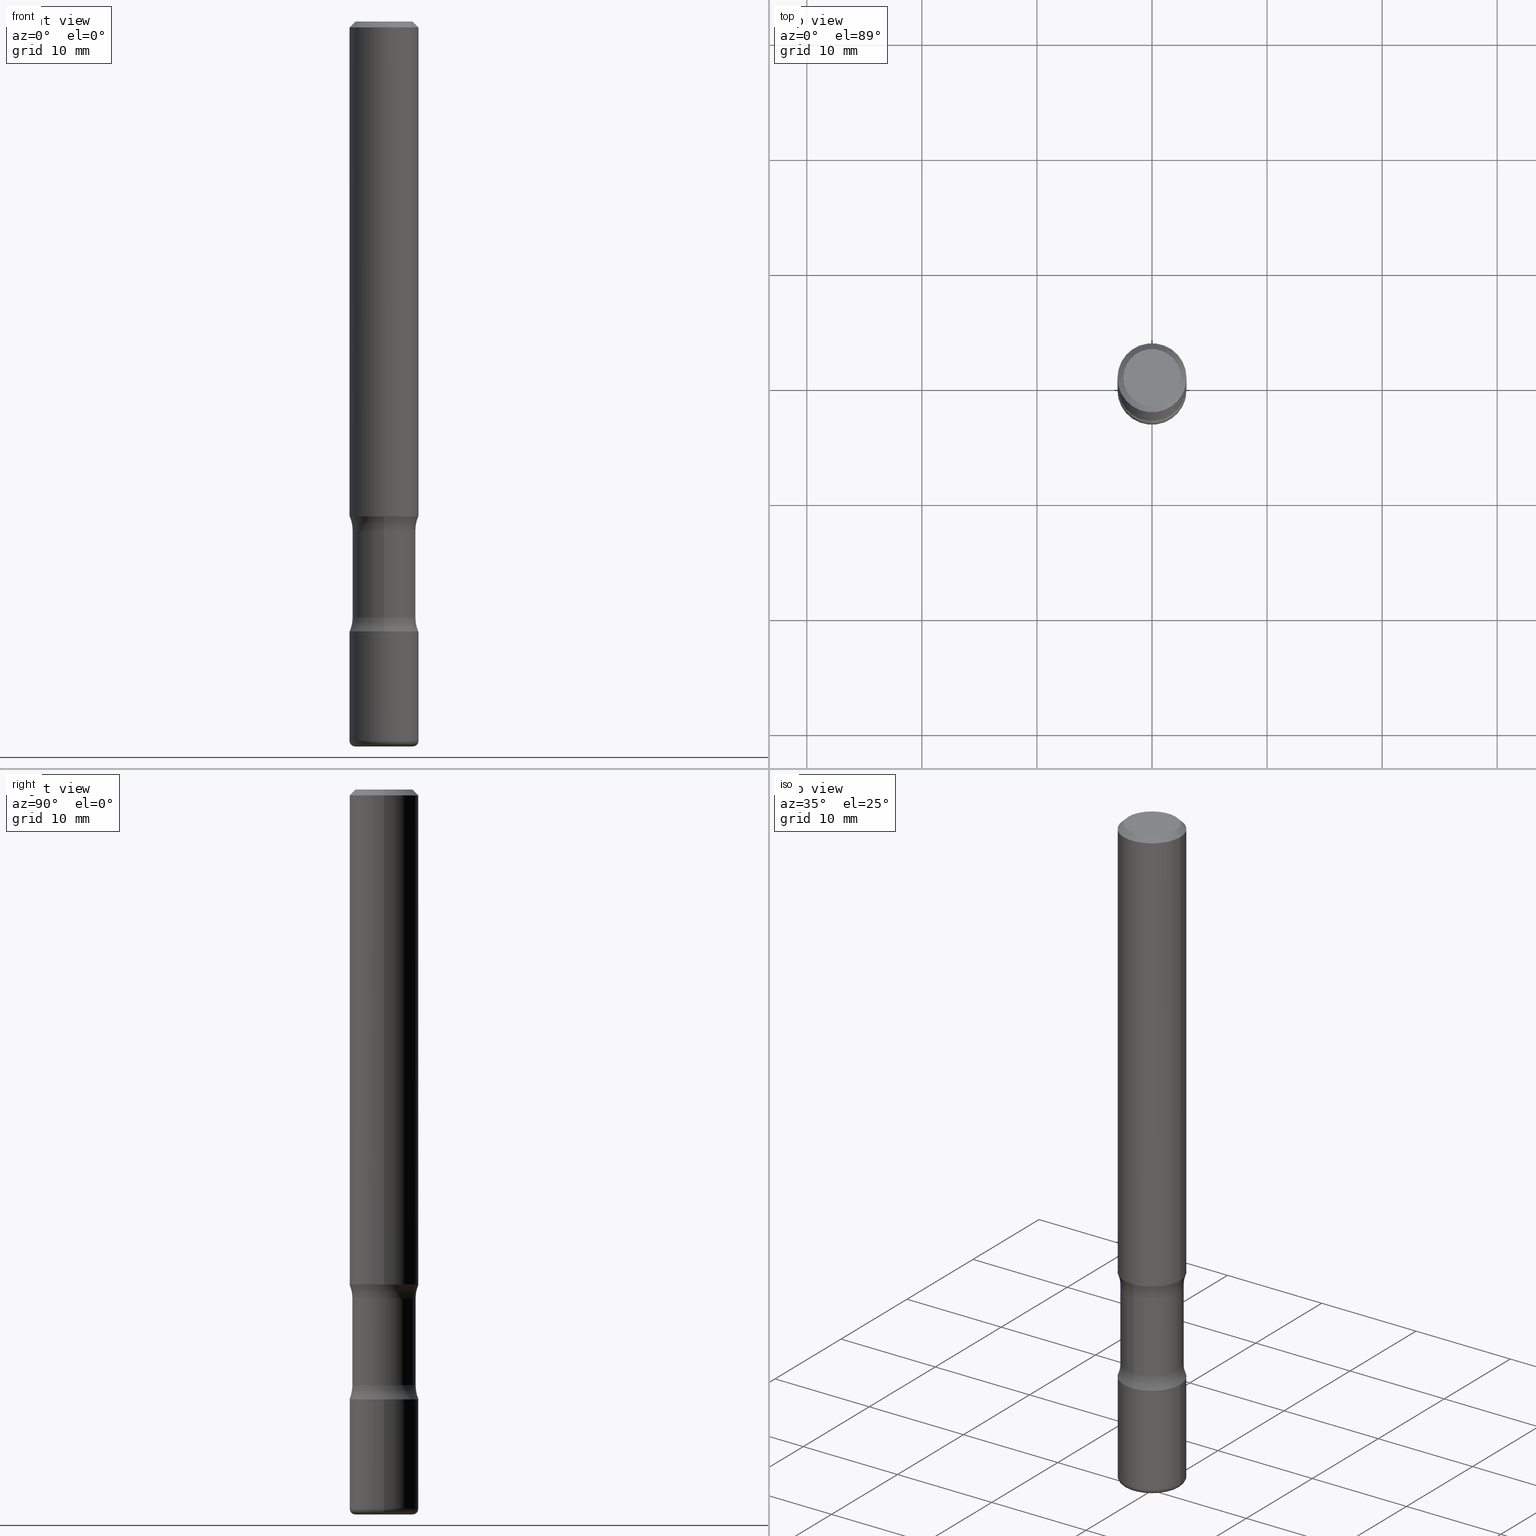
[diagram: canonical four-view strip — front | top / right | iso, engineering-drawing reading convention]
A machine part, canonical four-view strip (front | top / right | iso — engineering-drawing reading convention). The complete STEP part file that produces these views, byte-faithful:
ISO-10303-21;
HEADER;
FILE_DESCRIPTION (( 'STEP AP203' ),
    '1' );
FILE_NAME ('44789.STEP',
    '2024-03-02T03:19:21',
    ( '' ),
    ( '' ),
    'SwSTEP 2.0',
    'SolidWorks 2023',
    '' );
FILE_SCHEMA (( 'CONFIG_CONTROL_DESIGN' ));
ENDSEC;

DATA;
#1 = CARTESIAN_POINT ( 'NONE',  ( -7.412768086591543542E-16, -0.1080500000000088057, -2.480299999999999727 ) ) ;
#2 = AXIS2_PLACEMENT_3D ( 'NONE', #320, #83, #263 ) ;
#3 = APPLICATION_CONTEXT ( 'configuration controlled 3d designs of mechanical parts and assemblies' ) ;
#4 = PLANE ( 'NONE',  #230 ) ;
#5 = EDGE_CURVE ( 'NONE', #157, #156, #130, .T. ) ;
#6 = DIRECTION ( 'NONE',  ( -2.445468806185136597E-29, 3.491481338843145583E-15, 1.000000000000000000 ) ) ;
#7 = APPROVAL_PERSON_ORGANIZATION ( #195, #518, #500 ) ;
#8 = AXIS2_PLACEMENT_3D ( 'NONE', #545, #169, #369 ) ;
#9 = EDGE_LOOP ( 'NONE', ( #124, #232, #28, #239 ) ) ;
#10 = DIRECTION ( 'NONE',  ( 1.739927459713082666E-29, -4.501856703910724248E-15, -1.000000000000000000 ) ) ;
#11 = EDGE_LOOP ( 'NONE', ( #282, #290, #388, #314 ) ) ;
#12 = ADVANCED_FACE ( 'NONE', ( #433 ), #527, .T. ) ;
#13 = ORIENTED_EDGE ( 'NONE', *, *, #375, .T. ) ;
#14 = ORIENTED_EDGE ( 'NONE', *, *, #319, .T. ) ;
#15 = APPLICATION_PROTOCOL_DEFINITION ( 'international standard', 'config_control_design', 1994, #400 ) ;
#16 = PERSON_AND_ORGANIZATION_ROLE ( 'design_supplier' ) ;
#17 = CIRCLE ( 'NONE', #439, 0.1181000000000004407 ) ;
#18 = ORIENTED_EDGE ( 'NONE', *, *, #505, .F. ) ;
#19 = PERSON_AND_ORGANIZATION_ROLE ( 'classification_officer' ) ;
#20 = LINE ( 'NONE', #342, #466 ) ;
#21 = CARTESIAN_POINT ( 'NONE',  ( -0.1181000000000003713, 8.391509709326809581E-16, -5.809262341591062001E-30 ) ) ;
#22 = CARTESIAN_POINT ( 'NONE',  ( -0.09840000000000045932, -7.856367562084738439E-15, -2.480300000000000171 ) ) ;
#23 = EDGE_CURVE ( 'NONE', #246, #204, #421, .T. ) ;
#24 = DATE_AND_TIME ( #418, #371 ) ;
#25 = VERTEX_POINT ( 'NONE', #133 ) ;
#26 = CARTESIAN_POINT ( 'NONE',  ( -7.757508110979694300E-16, -0.1080500000000053085, -1.742007000519274706 ) ) ;
#27 = LINE ( 'NONE', #21, #148 ) ;
#28 = ORIENTED_EDGE ( 'NONE', *, *, #489, .F. ) ;
#29 = DIRECTION ( 'NONE',  ( 2.438088387897960049E-29, -3.491481338843145188E-15, -1.000000000000000000 ) ) ;
#30 = EDGE_CURVE ( 'NONE', #107, #532, #231, .T. ) ;
#31 = CARTESIAN_POINT ( 'NONE',  ( -8.102248135367737575E-16, -0.1181000000000055200, -1.692899999999999405 ) ) ;
#32 = CARTESIAN_POINT ( 'NONE',  ( 0.1181000000000005101, -9.415826874592195569E-15, -2.460600000000000342 ) ) ;
#33 = CARTESIAN_POINT ( 'NONE',  ( -1.638148592442117198E-29, -1.693862559428012074E-14, -2.086600000000001121 ) ) ;
#34 = FACE_OUTER_BOUND ( 'NONE', #544, .T. ) ;
#35 = AXIS2_PLACEMENT_3D ( 'NONE', #98, #101, #453 ) ;
#36 = DIRECTION ( 'NONE',  ( 1.739927459713082666E-29, -4.501856703910724248E-15, -1.000000000000000000 ) ) ;
#37 = ORIENTED_EDGE ( 'NONE', *, *, #104, .T. ) ;
#38 = CLOSED_SHELL ( 'NONE', ( #12, #219, #304, #512, #409, #289, #283, #315 ) ) ;
#39 = CYLINDRICAL_SURFACE ( 'NONE', #480, 0.1181000000000005240 ) ;
#40 = TOROIDAL_SURFACE ( 'NONE', #267, 0.2330499999999996463, 0.1250000000000000555 ) ;
#41 = DIRECTION ( 'NONE',  ( 2.438088387897960049E-29, -3.491481338843145188E-15, -1.000000000000000000 ) ) ;
#42 = EDGE_LOOP ( 'NONE', ( #244, #162, #341, #297 ) ) ;
#43 = ORIENTED_EDGE ( 'NONE', *, *, #63, .F. ) ;
#44 = DIRECTION ( 'NONE',  ( -1.000000000000000000, 6.982962677686265922E-15, -4.876176775795935793E-29 ) ) ;
#45 = CARTESIAN_POINT ( 'NONE',  ( 5.006471063776791088E-29, -7.079720685789698348E-15, -2.037492999480726041 ) ) ;
#46 = ADVANCED_FACE ( 'NONE', ( #522 ), #318, .F. ) ;
#47 = EDGE_LOOP ( 'NONE', ( #274, #64 ) ) ;
#48 = CC_DESIGN_PERSON_AND_ORGANIZATION_ASSIGNMENT ( #139, #499, ( #335 ) ) ;
#49 = CARTESIAN_POINT ( 'NONE',  ( 5.006471063776791088E-29, -7.079720685789698348E-15, -2.037492999480726041 ) ) ;
#50 = AXIS2_PLACEMENT_3D ( 'NONE', #379, #331, #420 ) ;
#51 = CIRCLE ( 'NONE', #35, 0.1181000000000004407 ) ;
#52 =( NAMED_UNIT ( * ) SI_UNIT ( $, .STERADIAN. ) SOLID_ANGLE_UNIT ( ) );
#53 = CARTESIAN_POINT ( 'NONE',  ( 5.787724651874947150E-29, -9.057705945959761462E-15, -2.480300000000000171 ) ) ;
#54 = LINE ( 'NONE', #326, #72 ) ;
#55 = APPROVAL_STATUS ( 'not_yet_approved' ) ;
#56 = EDGE_CURVE ( 'NONE', #455, #122, #362, .T. ) ;
#57 = CLOSED_SHELL ( 'NONE', ( #392, #469, #182, #46, #268, #424 ) ) ;
#58 = VERTEX_POINT ( 'NONE', #184 ) ;
#59 = ORIENTED_EDGE ( 'NONE', *, *, #70, .F. ) ;
#60 = EDGE_CURVE ( 'NONE', #131, #58, #356, .T. ) ;
#61 = DIRECTION ( 'NONE',  ( 1.739927459713082666E-29, -4.501856703910724248E-15, -1.000000000000000000 ) ) ;
#62 = FACE_OUTER_BOUND ( 'NONE', #42, .T. ) ;
#63 = EDGE_CURVE ( 'NONE', #126, #333, #488, .T. ) ;
#64 = ORIENTED_EDGE ( 'NONE', *, *, #104, .F. ) ;
#65 = ORIENTED_EDGE ( 'NONE', *, *, #265, .F. ) ;
#66 = FACE_OUTER_BOUND ( 'NONE', #105, .T. ) ;
#67 = CC_DESIGN_PERSON_AND_ORGANIZATION_ASSIGNMENT ( #370, #16, ( #189 ) ) ;
#68 = ORIENTED_EDGE ( 'NONE', *, *, #384, .T. ) ;
#69 = AXIS2_PLACEMENT_3D ( 'NONE', #459, #276, #192 ) ;
#70 = EDGE_CURVE ( 'NONE', #551, #187, #199, .T. ) ;
#71 = CC_DESIGN_APPROVAL ( #518, ( #419 ) ) ;
#72 = VECTOR ( 'NONE', #482, 39.37007874015748143 ) ;
#73 = DIRECTION ( 'NONE',  ( 1.000000000000000000, -6.982962677686272233E-15, 4.883557194083114583E-29 ) ) ;
#74 = ADVANCED_FACE ( 'NONE', ( #471 ), #4, .T. ) ;
#75 = CARTESIAN_POINT ( 'NONE',  ( -0.1181000000000005101, -7.751988011424765165E-15, -2.460600000000000342 ) ) ;
#76 = EDGE_LOOP ( 'NONE', ( #313, #151 ) ) ;
#77 = CARTESIAN_POINT ( 'NONE',  ( 6.017320544499148018E-29, -8.591138982357445728E-15, -2.460600000000000342 ) ) ;
#78 = CARTESIAN_POINT ( 'NONE',  ( 6.017320544499148018E-29, -8.591138982357445728E-15, -2.460600000000000342 ) ) ;
#79 = DIRECTION ( 'NONE',  ( -2.445468806185136597E-29, 3.491481338843145583E-15, 1.000000000000000000 ) ) ;
#80 = TOROIDAL_SURFACE ( 'NONE', #395, 0.09840000000000044544, 0.01969999999999998141 ) ;
#81 = CARTESIAN_POINT ( 'NONE',  ( 4.890937612370289799E-31, -6.982962677686315028E-17, -0.02000000000000006981 ) ) ;
#82 = DIRECTION ( 'NONE',  ( 1.000000000000000000, -6.982962677686266711E-15, 4.876176775795936353E-29 ) ) ;
#83 = DIRECTION ( 'NONE',  ( -2.445468806185136597E-29, 3.491481338843145583E-15, 1.000000000000000000 ) ) ;
#84 = PLANE ( 'NONE',  #197 ) ;
#85 = FACE_OUTER_BOUND ( 'NONE', #485, .T. ) ;
#86 = CARTESIAN_POINT ( 'NONE',  ( 6.017320544499148018E-29, -8.591138982357445728E-15, -2.460600000000000342 ) ) ;
#87 = EDGE_CURVE ( 'NONE', #352, #107, #206, .T. ) ;
#88 = AXIS2_PLACEMENT_3D ( 'NONE', #357, #269, #346 ) ;
#89 = CARTESIAN_POINT ( 'NONE',  ( 5.102715210985908518E-29, -7.285324961630110572E-15, -2.086600000000001121 ) ) ;
#90 = ORIENTED_EDGE ( 'NONE', *, *, #380, .F. ) ;
#91 = AXIS2_PLACEMENT_3D ( 'NONE', #188, #373, #217 ) ;
#92 = DIRECTION ( 'NONE',  ( 1.000000000000000000, -6.982962677686268288E-15, 0.000000000000000000 ) ) ;
#93 = ORIENTED_EDGE ( 'NONE', *, *, #481, .F. ) ;
#94 = CARTESIAN_POINT ( 'NONE',  ( 8.246878922347920444E-16, 0.1180999999999945010, -1.692900000000000293 ) ) ;
#95 = DIRECTION ( 'NONE',  ( -2.445468806185136597E-29, 3.491481338843145583E-15, 1.000000000000000000 ) ) ;
#96 = DIRECTION ( 'NONE',  ( 1.000000000000000000, -6.982962677686267499E-15, 0.000000000000000000 ) ) ;
#97 = DATE_AND_TIME ( #531, #554 ) ;
#98 = CARTESIAN_POINT ( 'NONE',  ( 5.102715210985908518E-29, -7.285324961630110572E-15, -2.086600000000001121 ) ) ;
#99 = CIRCLE ( 'NONE', #479, 0.1181000000000004407 ) ;
#100 = CIRCLE ( 'NONE', #235, 0.1181000000000004407 ) ;
#101 = DIRECTION ( 'NONE',  ( 1.739927459713082666E-29, -4.501856703910724248E-15, -1.000000000000000000 ) ) ;
#102 = DATE_AND_TIME ( #465, #539 ) ;
#103 = ORIENTED_EDGE ( 'NONE', *, *, #553, .T. ) ;
#104 = EDGE_CURVE ( 'NONE', #122, #455, #306, .T. ) ;
#105 = EDGE_LOOP ( 'NONE', ( #65, #519, #13, #537 ) ) ;
#106 = CC_DESIGN_APPROVAL ( #301, ( #189 ) ) ;
#107 = VERTEX_POINT ( 'NONE', #32 ) ;
#108 = CARTESIAN_POINT ( 'NONE',  ( -1.638148592442117198E-29, -1.693862559428012074E-14, -2.086600000000001121 ) ) ;
#109 = ORIENTED_EDGE ( 'NONE', *, *, #185, .F. ) ;
#110 = ADVANCED_FACE ( 'NONE', ( #266 ), #80, .T. ) ;
#111 = DIRECTION ( 'NONE',  ( 1.000000000000000000, 0.000000000000000000, 0.000000000000000000 ) ) ;
#112 = DIRECTION ( 'NONE',  ( -1.000000000000000000, 6.982962677686267499E-15, 0.000000000000000000 ) ) ;
#113 = LINE ( 'NONE', #332, #294 ) ;
#114 = DIRECTION ( 'NONE',  ( 1.739927459713082666E-29, -4.501856703910724248E-15, -1.000000000000000000 ) ) ;
#115 = DIRECTION ( 'NONE',  ( 2.438088387897960049E-29, -3.491481338843145188E-15, -1.000000000000000000 ) ) ;
#116 = ORIENTED_EDGE ( 'NONE', *, *, #70, .T. ) ;
#117 = AXIS2_PLACEMENT_3D ( 'NONE', #78, #474, #261 ) ;
#118 = ORGANIZATION ( 'UNSPECIFIED', 'UNSPECIFIED', '' ) ;
#119 = AXIS2_PLACEMENT_3D ( 'NONE', #136, #475, #96 ) ;
#120 = ORIENTED_EDGE ( 'NONE', *, *, #328, .F. ) ;
#121 = AXIS2_PLACEMENT_3D ( 'NONE', #108, #285, #198 ) ;
#122 = VERTEX_POINT ( 'NONE', #22 ) ;
#123 = CARTESIAN_POINT ( 'NONE',  ( 0.000000000000000000, 0.000000000000000000, 0.000000000000000000 ) ) ;
#124 = ORIENTED_EDGE ( 'NONE', *, *, #56, .T. ) ;
#125 = DATE_TIME_ROLE ( 'creation_date' ) ;
#126 = VERTEX_POINT ( 'NONE', #302 ) ;
#127 = DIRECTION ( 'NONE',  ( 1.739927459713082666E-29, -4.501856703910724248E-15, -1.000000000000000000 ) ) ;
#128 = DIRECTION ( 'NONE',  ( 6.982962677686265922E-15, 1.000000000000000000, -4.626330217890367758E-15 ) ) ;
#129 = CARTESIAN_POINT ( 'NONE',  ( 4.139934141990817236E-29, -5.910728758527560286E-15, -1.692899999999999849 ) ) ;
#130 = CIRCLE ( 'NONE', #218, 0.1080499999999995631 ) ;
#131 = VERTEX_POINT ( 'NONE', #381 ) ;
#132 = PRODUCT ( '44789', '44789', '', ( #166 ) ) ;
#133 = CARTESIAN_POINT ( 'NONE',  ( 0.1181000000000005795, -6.735416650762312493E-15, -1.692899999999999849 ) ) ;
#134 = CARTESIAN_POINT ( 'NONE',  ( 4.139934141990817236E-29, -5.910728758527560286E-15, -1.692899999999999849 ) ) ;
#135 = EDGE_CURVE ( 'NONE', #551, #333, #20, .T. ) ;
#136 = CARTESIAN_POINT ( 'NONE',  ( 4.890937612370289799E-31, -6.982962677686315028E-17, -0.02000000000000006981 ) ) ;
#137 = ORIENTED_EDGE ( 'NONE', *, *, #185, .T. ) ;
#138 = DIRECTION ( 'NONE',  ( 1.739927459713082666E-29, -4.501856703910724248E-15, -1.000000000000000000 ) ) ;
#139 = PERSON_AND_ORGANIZATION ( #270, #118 ) ;
#140 = EDGE_CURVE ( 'NONE', #208, #58, #540, .T. ) ;
#141 = DIRECTION ( 'NONE',  ( 1.000000000000000000, -6.982962677686262766E-15, 0.000000000000000000 ) ) ;
#142 = DIRECTION ( 'NONE',  ( -1.000000000000000000, 6.982962677686265922E-15, -4.883557194083112340E-29 ) ) ;
#143 = DIRECTION ( 'NONE',  ( -2.445468806185136877E-29, 3.491481338843145188E-15, 1.000000000000000000 ) ) ;
#144 = FACE_OUTER_BOUND ( 'NONE', #216, .T. ) ;
#145 = DIRECTION ( 'NONE',  ( 1.000000000000000000, -6.982962677686261189E-15, 0.000000000000000000 ) ) ;
#146 = CARTESIAN_POINT ( 'NONE',  ( 6.850286386810237370E-16, 0.09810000000000014542, -3.595883693009147092E-16 ) ) ;
#147 = AXIS2_PLACEMENT_3D ( 'NONE', #49, #186, #264 ) ;
#148 = VECTOR ( 'NONE', #215, 39.37007874015748143 ) ;
#149 = DIRECTION ( 'NONE',  ( 6.982962677686265922E-15, 1.000000000000000000, -4.626330217890351981E-15 ) ) ;
#150 = APPROVAL_DATE_TIME ( #97, #301 ) ;
#151 = ORIENTED_EDGE ( 'NONE', *, *, #23, .F. ) ;
#152 = DIRECTION ( 'NONE',  ( 6.982962677686265133E-15, 1.000000000000000000, -4.501856703910724248E-15 ) ) ;
#153 = CC_DESIGN_DATE_AND_TIME_ASSIGNMENT ( #203, #457, ( #419 ) ) ;
#154 = CLOSED_SHELL ( 'NONE', ( #272, #110, #74, #324, #377, #501 ) ) ;
#155 = CIRCLE ( 'NONE', #437, 0.1080499999999995631 ) ;
#156 = VERTEX_POINT ( 'NONE', #26 ) ;
#157 = VERTEX_POINT ( 'NONE', #222 ) ;
#158 = EDGE_LOOP ( 'NONE', ( #368, #463, #68, #496 ) ) ;
#159 = PERSON_AND_ORGANIZATION ( #270, #118 ) ;
#160 = LINE ( 'NONE', #490, #181 ) ;
#161 = CYLINDRICAL_SURFACE ( 'NONE', #460, 0.1181000000000003713 ) ;
#162 = ORIENTED_EDGE ( 'NONE', *, *, #487, .T. ) ;
#163 = AXIS2_PLACEMENT_3D ( 'NONE', #430, #441, #275 ) ;
#164 = CARTESIAN_POINT ( 'NONE',  ( 4.890937612370289799E-31, -6.982962677686315028E-17, -0.02000000000000006981 ) ) ;
#165 = ADVANCED_BREP_SHAPE_REPRESENTATION ( '44789', ( #526, #339, #511, #448 ), #207 ) ;
#166 = MECHANICAL_CONTEXT ( 'NONE', #3, 'mechanical' ) ;
#167 = DIRECTION ( 'NONE',  ( 6.982962677686265922E-15, 1.000000000000000000, -4.501856703910724248E-15 ) ) ;
#168 = DIRECTION ( 'NONE',  ( -2.445468806185136597E-29, 3.491481338843145583E-15, 1.000000000000000000 ) ) ;
#169 = DIRECTION ( 'NONE',  ( -6.982962677686266711E-15, -1.000000000000000000, 3.491481338843145583E-15 ) ) ;
#170 = LINE ( 'NONE', #543, #200 ) ;
#171 = DIRECTION ( 'NONE',  ( 1.000000000000000000, -6.982962677686265922E-15, 4.877161320636760066E-29 ) ) ;
#172 = ORIENTED_EDGE ( 'NONE', *, *, #328, .T. ) ;
#173 = CARTESIAN_POINT ( 'NONE',  ( 4.417705770096865962E-29, -5.512943977300454160E-15, -1.692899999999999849 ) ) ;
#174 = CC_DESIGN_DATE_AND_TIME_ASSIGNMENT ( #24, #125, ( #335 ) ) ;
#175 = SECURITY_CLASSIFICATION_LEVEL ( 'unclassified' ) ;
#176 = DIRECTION ( 'NONE',  ( 1.000000000000000000, -6.982962677686262766E-15, 0.000000000000000000 ) ) ;
#177 = CIRCLE ( 'NONE', #557, 0.1250000000000000555 ) ;
#178 = AXIS2_PLACEMENT_3D ( 'NONE', #81, #426, #556 ) ;
#179 = EDGE_CURVE ( 'NONE', #204, #246, #528, .T. ) ;
#180 = PERSON_AND_ORGANIZATION ( #270, #118 ) ;
#181 = VECTOR ( 'NONE', #336, 39.37007874015748143 ) ;
#182 = ADVANCED_FACE ( 'NONE', ( #305 ), #411, .T. ) ;
#183 = CARTESIAN_POINT ( 'NONE',  ( 0.09810000000000014542, -7.765346469475353361E-16, -3.414809992079818112E-17 ) ) ;
#184 = CARTESIAN_POINT ( 'NONE',  ( 7.545091173240505591E-16, 0.1080499999999928323, -2.037492999480726930 ) ) ;
#185 = EDGE_CURVE ( 'NONE', #416, #532, #99, .T. ) ;
#186 = DIRECTION ( 'NONE',  ( 1.739927459713082666E-29, -4.501856703910724248E-15, -1.000000000000000000 ) ) ;
#187 = VERTEX_POINT ( 'NONE', #183 ) ;
#188 = CARTESIAN_POINT ( 'NONE',  ( 0.000000000000000000, 0.000000000000000000, 0.000000000000000000 ) ) ;
#189 = PRODUCT_DEFINITION_FORMATION_WITH_SPECIFIED_SOURCE ( 'ANY', '', #132, .NOT_KNOWN. ) ;
#190 = DIRECTION ( 'NONE',  ( 1.739927459713082666E-29, -4.501856703910724248E-15, -1.000000000000000000 ) ) ;
#191 = CARTESIAN_POINT ( 'NONE',  ( 4.503148388764497858E-29, -5.734016656797101512E-15, -1.742007000519275373 ) ) ;
#192 = DIRECTION ( 'NONE',  ( 1.000000000000000000, -6.982962677686266711E-15, 4.876176775795936353E-29 ) ) ;
#193 = CARTESIAN_POINT ( 'NONE',  ( 6.065496279980994755E-29, -8.659921164732655335E-15, -2.480300000000000171 ) ) ;
#194 = CARTESIAN_POINT ( 'NONE',  ( 4.417705770096865962E-29, -5.512943977300454160E-15, -1.692899999999999849 ) ) ;
#195 = PERSON_AND_ORGANIZATION ( #270, #118 ) ;
#196 = DIRECTION ( 'NONE',  ( 1.000000000000000000, -6.982962677686272233E-15, 4.883557194083114583E-29 ) ) ;
#197 = AXIS2_PLACEMENT_3D ( 'NONE', #33, #29, #44 ) ;
#198 = DIRECTION ( 'NONE',  ( -6.982962677686265922E-15, -1.000000000000000000, 4.501856703910724248E-15 ) ) ;
#199 = CIRCLE ( 'NONE', #494, 0.09810000000000014542 ) ;
#200 = VECTOR ( 'NONE', #114, 39.37007874015748143 ) ;
#201 = ORIENTED_EDGE ( 'NONE', *, *, #87, .F. ) ;
#202 = DIRECTION ( 'NONE',  ( 6.982962677686265922E-15, 1.000000000000000000, -5.056636730521562350E-15 ) ) ;
#203 = DATE_AND_TIME ( #338, #295 ) ;
#204 = VERTEX_POINT ( 'NONE', #94 ) ;
#205 = EDGE_LOOP ( 'NONE', ( #434, #14 ) ) ;
#206 = CIRCLE ( 'NONE', #259, 0.1181000000000006073 ) ;
#207 =( GEOMETRIC_REPRESENTATION_CONTEXT ( 3 ) GLOBAL_UNCERTAINTY_ASSIGNED_CONTEXT ( ( #468 ) ) GLOBAL_UNIT_ASSIGNED_CONTEXT ( ( #508, #446, #52 ) ) REPRESENTATION_CONTEXT ( 'NONE', 'WORKASPACE' ) );
#208 = VERTEX_POINT ( 'NONE', #273 ) ;
#209 = VERTEX_POINT ( 'NONE', #316 ) ;
#210 = DIRECTION ( 'NONE',  ( 6.982962677686265922E-15, 1.000000000000000000, -5.056636730521562350E-15 ) ) ;
#211 = DIRECTION ( 'NONE',  ( -2.445468806185136597E-29, 3.491481338843145583E-15, 1.000000000000000000 ) ) ;
#212 = ORIENTED_EDGE ( 'NONE', *, *, #404, .T. ) ;
#213 = EDGE_LOOP ( 'NONE', ( #308, #503, #18, #374 ) ) ;
#214 = DIRECTION ( 'NONE',  ( -0.7071067811865473507, 2.468850131082255088E-15, -0.7071067811865476838 ) ) ;
#215 = DIRECTION ( 'NONE',  ( -2.445468806185136877E-29, 3.491481338843145188E-15, 1.000000000000000000 ) ) ;
#216 = EDGE_LOOP ( 'NONE', ( #382, #37, #103, #201 ) ) ;
#217 = DIRECTION ( 'NONE',  ( 1.000000000000000000, -6.982962677686266711E-15, 4.876176775795936353E-29 ) ) ;
#218 = AXIS2_PLACEMENT_3D ( 'NONE', #191, #10, #202 ) ;
#219 = ADVANCED_FACE ( 'NONE', ( #444 ), #555, .F. ) ;
#220 = CARTESIAN_POINT ( 'NONE',  ( 4.503148388764497858E-29, -5.734016656797101512E-15, -1.742007000519275373 ) ) ;
#221 = APPROVAL ( #390, 'UNSPECIFIED' ) ;
#222 = CARTESIAN_POINT ( 'NONE',  ( 7.545091173240430650E-16, 0.1080499999999938315, -1.742007000519275817 ) ) ;
#223 = DIRECTION ( 'NONE',  ( 1.000000000000000000, -6.982962677686267499E-15, 0.000000000000000000 ) ) ;
#224 = COORDINATED_UNIVERSAL_TIME_OFFSET ( 5, 0, .BEHIND. ) ;
#225 = EDGE_CURVE ( 'NONE', #25, #407, #322, .T. ) ;
#226 = FACE_OUTER_BOUND ( 'NONE', #251, .T. ) ;
#227 = DIRECTION ( 'NONE',  ( -1.000000000000000000, 6.982962677686265922E-15, -4.876176775795935793E-29 ) ) ;
#228 = APPROVAL_DATE_TIME ( #102, #518 ) ;
#229 = CONICAL_SURFACE ( 'NONE', #529, 0.1181000000000001632, 0.7853981633974480570 ) ;
#230 = AXIS2_PLACEMENT_3D ( 'NONE', #193, #41, #359 ) ;
#231 = LINE ( 'NONE', #393, #394 ) ;
#232 = ORIENTED_EDGE ( 'NONE', *, *, #298, .T. ) ;
#233 = DIRECTION ( 'NONE',  ( 1.000000000000000000, -6.860497997771530774E-15, 4.828425350056469255E-29 ) ) ;
#234 = AXIS2_PLACEMENT_3D ( 'NONE', #397, #442, #92 ) ;
#235 = AXIS2_PLACEMENT_3D ( 'NONE', #427, #491, #253 ) ;
#236 = CARTESIAN_POINT ( 'NONE',  ( 5.787724651874947150E-29, -9.057705945959761462E-15, -2.480300000000000171 ) ) ;
#237 = CARTESIAN_POINT ( 'NONE',  ( 4.498478687186892660E-29, -5.740703935239137328E-15, -1.742007000519275151 ) ) ;
#238 = PLANE ( 'NONE',  #121 ) ;
#239 = ORIENTED_EDGE ( 'NONE', *, *, #553, .F. ) ;
#240 = ORIENTED_EDGE ( 'NONE', *, *, #60, .T. ) ;
#241 = DIRECTION ( 'NONE',  ( -1.000000000000000000, 7.105427357600982926E-15, 0.000000000000000000 ) ) ;
#242 = PERSON_AND_ORGANIZATION ( #270, #118 ) ;
#243 = ORIENTED_EDGE ( 'NONE', *, *, #431, .T. ) ;
#244 = ORIENTED_EDGE ( 'NONE', *, *, #404, .F. ) ;
#245 = PERSON_AND_ORGANIZATION_ROLE ( 'design_owner' ) ;
#246 = VERTEX_POINT ( 'NONE', #31 ) ;
#247 = ORIENTED_EDGE ( 'NONE', *, *, #443, .T. ) ;
#248 = CARTESIAN_POINT ( 'NONE',  ( -0.09810000000000014542, 7.199434520694548930E-16, -3.414809992080820212E-17 ) ) ;
#249 = AXIS2_PLACEMENT_3D ( 'NONE', #445, #142, #559 ) ;
#250 = AXIS2_PLACEMENT_3D ( 'NONE', #53, #398, #364 ) ;
#251 = EDGE_LOOP ( 'NONE', ( #550, #493, #240, #454 ) ) ;
#252 =( LENGTH_UNIT ( ) NAMED_UNIT ( * ) SI_UNIT ( $, .METRE. ) );
#253 = DIRECTION ( 'NONE',  ( 1.000000000000000000, -6.982962677686262766E-15, 0.000000000000000000 ) ) ;
#254 = EDGE_CURVE ( 'NONE', #209, #208, #477, .T. ) ;
#255 = COORDINATED_UNIVERSAL_TIME_OFFSET ( 5, 0, .BEHIND. ) ;
#256 = FACE_OUTER_BOUND ( 'NONE', #76, .T. ) ;
#257 = DIRECTION ( 'NONE',  ( -2.445468806185136877E-29, 3.491481338843145188E-15, 1.000000000000000000 ) ) ;
#258 = CC_DESIGN_PERSON_AND_ORGANIZATION_ASSIGNMENT ( #180, #19, ( #419 ) ) ;
#259 = AXIS2_PLACEMENT_3D ( 'NONE', #86, #521, #145 ) ;
#260 = EDGE_LOOP ( 'NONE', ( #243, #137 ) ) ;
#261 = DIRECTION ( 'NONE',  ( 1.000000000000000000, -6.982962677686261189E-15, 0.000000000000000000 ) ) ;
#262 = ORIENTED_EDGE ( 'NONE', *, *, #225, .F. ) ;
#263 = DIRECTION ( 'NONE',  ( 1.000000000000000000, -6.982962677686268288E-15, 0.000000000000000000 ) ) ;
#264 = DIRECTION ( 'NONE',  ( 6.982962677686265133E-15, 1.000000000000000000, -4.501856703910724248E-15 ) ) ;
#265 = EDGE_CURVE ( 'NONE', #156, #208, #391, .T. ) ;
#266 = FACE_OUTER_BOUND ( 'NONE', #9, .T. ) ;
#267 = AXIS2_PLACEMENT_3D ( 'NONE', #435, #317, #546 ) ;
#268 = ADVANCED_FACE ( 'NONE', ( #351 ), #470, .F. ) ;
#269 = DIRECTION ( 'NONE',  ( -2.438088387897960049E-29, 3.491481338843145188E-15, 1.000000000000000000 ) ) ;
#270 = PERSON ( 'UNSPECIFIED', 'UNSPECIFIED', 'UNSPECIFIED', ('UNSPECIFIED'), ('UNSPECIFIED'), ('UNSPECIFIED') ) ;
#271 = PERSON_AND_ORGANIZATION ( #270, #118 ) ;
#272 = ADVANCED_FACE ( 'NONE', ( #85 ), #39, .T. ) ;
#273 = CARTESIAN_POINT ( 'NONE',  ( -7.757508110979665703E-16, -0.1080500000000069738, -2.037492999480725597 ) ) ;
#274 = ORIENTED_EDGE ( 'NONE', *, *, #56, .F. ) ;
#275 = DIRECTION ( 'NONE',  ( 6.860497997771531562E-15, 1.000000000000000000, 0.000000000000000000 ) ) ;
#276 = DIRECTION ( 'NONE',  ( -2.445468806185136597E-29, 3.491481338843145583E-15, 1.000000000000000000 ) ) ;
#277 = CARTESIAN_POINT ( 'NONE',  ( 8.350811314681758556E-46, -1.192274536304357760E-31, -3.414809992080329023E-17 ) ) ;
#278 = AXIS2_PLACEMENT_3D ( 'NONE', #173, #502, #128 ) ;
#279 = AXIS2_PLACEMENT_3D ( 'NONE', #45, #138, #399 ) ;
#280 = EDGE_CURVE ( 'NONE', #156, #246, #401, .T. ) ;
#281 = CARTESIAN_POINT ( 'NONE',  ( 4.890937612370289799E-31, -6.982962677686315028E-17, -0.02000000000000006981 ) ) ;
#282 = ORIENTED_EDGE ( 'NONE', *, *, #365, .F. ) ;
#283 = ADVANCED_FACE ( 'NONE', ( #226 ), #495, .F. ) ;
#284 = ORIENTED_EDGE ( 'NONE', *, *, #481, .T. ) ;
#285 = DIRECTION ( 'NONE',  ( -1.739927459713082666E-29, 4.501856703910724248E-15, 1.000000000000000000 ) ) ;
#286 = DIRECTION ( 'NONE',  ( -6.982962677686266711E-15, -1.000000000000000000, 0.000000000000000000 ) ) ;
#287 = CARTESIAN_POINT ( 'NONE',  ( 5.102715210985908518E-29, -7.285324961630110572E-15, -2.086600000000001121 ) ) ;
#288 = DIRECTION ( 'NONE',  ( -1.000000000000000000, 6.982962677686265922E-15, -4.883557194083112340E-29 ) ) ;
#289 = ADVANCED_FACE ( 'NONE', ( #514 ), #238, .F. ) ;
#290 = ORIENTED_EDGE ( 'NONE', *, *, #280, .T. ) ;
#291 = CYLINDRICAL_SURFACE ( 'NONE', #69, 0.1181000000000003713 ) ;
#292 = ORIENTED_EDGE ( 'NONE', *, *, #87, .T. ) ;
#293 = APPROVAL_ROLE ( '' ) ;
#294 = VECTOR ( 'NONE', #257, 39.37007874015748143 ) ;
#295 = LOCAL_TIME ( 22, 19, 21.00000000000000000, #255 ) ;
#296 = CIRCLE ( 'NONE', #117, 0.1181000000000006073 ) ;
#297 = ORIENTED_EDGE ( 'NONE', *, *, #135, .F. ) ;
#298 = EDGE_CURVE ( 'NONE', #122, #352, #323, .T. ) ;
#299 = ORIENTED_EDGE ( 'NONE', *, *, #135, .T. ) ;
#300 = CARTESIAN_POINT ( 'NONE',  ( 0.09840000000000045932, -9.347044692216987539E-15, -2.480300000000000171 ) ) ;
#301 = APPROVAL ( #533, 'UNSPECIFIED' ) ;
#302 = CARTESIAN_POINT ( 'NONE',  ( 0.1181000000000001632, -8.800544403136822180E-16, -0.02000000000000006981 ) ) ;
#303 = FACE_OUTER_BOUND ( 'NONE', #327, .T. ) ;
#304 = ADVANCED_FACE ( 'NONE', ( #530 ), #525, .F. ) ;
#305 = FACE_OUTER_BOUND ( 'NONE', #456, .T. ) ;
#306 = CIRCLE ( 'NONE', #2, 0.09840000000000045932 ) ;
#307 = AXIS2_PLACEMENT_3D ( 'NONE', #452, #6, #196 ) ;
#308 = ORIENTED_EDGE ( 'NONE', *, *, #5, .T. ) ;
#309 = DIRECTION ( 'NONE',  ( 6.982962677686265922E-15, 1.000000000000000000, -5.056636730521546572E-15 ) ) ;
#310 = DIRECTION ( 'NONE',  ( 6.860497997771530774E-15, 1.000000000000000000, 0.000000000000000000 ) ) ;
#311 = CARTESIAN_POINT ( 'NONE',  ( -1.598839058380604970E-15, -0.2330500000000070293, -2.037492999480724709 ) ) ;
#312 = DIRECTION ( 'NONE',  ( 1.000000000000000000, -6.982962677686265922E-15, 4.877161320636760066E-29 ) ) ;
#313 = ORIENTED_EDGE ( 'NONE', *, *, #179, .F. ) ;
#314 = ORIENTED_EDGE ( 'NONE', *, *, #384, .F. ) ;
#315 = ADVANCED_FACE ( 'NONE', ( #66 ), #520, .T. ) ;
#316 = CARTESIAN_POINT ( 'NONE',  ( -8.102248135367698132E-16, -0.1181000000000077266, -2.086600000000000676 ) ) ;
#317 = DIRECTION ( 'NONE',  ( 1.739927459713082666E-29, -4.501856703910724248E-15, -1.000000000000000000 ) ) ;
#318 = PLANE ( 'NONE',  #449 ) ;
#319 = EDGE_CURVE ( 'NONE', #209, #131, #17, .T. ) ;
#320 = CARTESIAN_POINT ( 'NONE',  ( 6.065496279980994755E-29, -8.659921164732655335E-15, -2.480300000000000171 ) ) ;
#321 = CIRCLE ( 'NONE', #450, 0.09810000000000014542 ) ;
#322 = CIRCLE ( 'NONE', #461, 0.1181000000000005795 ) ;
#323 = CIRCLE ( 'NONE', #361, 0.01969999999999998141 ) ;
#324 = ADVANCED_FACE ( 'NONE', ( #144 ), #472, .T. ) ;
#325 = EDGE_CURVE ( 'NONE', #131, #209, #51, .T. ) ;
#326 = CARTESIAN_POINT ( 'NONE',  ( -0.1181000000000005240, 8.391509709326820428E-16, -5.809262341591069708E-30 ) ) ;
#327 = EDGE_LOOP ( 'NONE', ( #507, #284, #329, #410 ) ) ;
#328 = EDGE_CURVE ( 'NONE', #352, #416, #54, .T. ) ;
#329 = ORIENTED_EDGE ( 'NONE', *, *, #380, .T. ) ;
#330 = EDGE_LOOP ( 'NONE', ( #116, #212 ) ) ;
#331 = DIRECTION ( 'NONE',  ( 1.739927459713082666E-29, -4.501856703910724248E-15, -1.000000000000000000 ) ) ;
#332 = CARTESIAN_POINT ( 'NONE',  ( 0.1181000000000003713, -8.246878922347507278E-16, 5.758764772215018657E-30 ) ) ;
#333 = VERTEX_POINT ( 'NONE', #464 ) ;
#334 = APPROVAL_PERSON_ORGANIZATION ( #242, #301, #293 ) ;
#335 = PRODUCT_DEFINITION ( 'UNKNOWN', '', #189, #355 ) ;
#336 = DIRECTION ( 'NONE',  ( 0.7071067811865473507, -7.319954787623256045E-15, -0.7071067811865476838 ) ) ;
#337 = AXIS2_PLACEMENT_3D ( 'NONE', #237, #61, #152 ) ;
#338 = CALENDAR_DATE ( 2024, 1, 3 ) ;
#339 = MANIFOLD_SOLID_BREP ( 'Body-Move/Copy2[2]', #57 ) ;
#340 = CARTESIAN_POINT ( 'NONE',  ( -0.1181000000000004407, -7.099081001061096009E-15, -2.086600000000001121 ) ) ;
#341 = ORIENTED_EDGE ( 'NONE', *, *, #63, .T. ) ;
#342 = CARTESIAN_POINT ( 'NONE',  ( -0.1181000000000001632, 7.548582654578862463E-16, -0.02000000000000006981 ) ) ;
#343 = CALENDAR_DATE ( 2024, 1, 3 ) ;
#344 = ORIENTED_EDGE ( 'NONE', *, *, #30, .T. ) ;
#345 = CARTESIAN_POINT ( 'NONE',  ( 0.1181000000000004407, -8.110012853864861990E-15, -2.086600000000001121 ) ) ;
#346 = DIRECTION ( 'NONE',  ( 1.000000000000000000, -6.982962677686265922E-15, 4.876176775795935793E-29 ) ) ;
#347 = AXIS2_PLACEMENT_3D ( 'NONE', #194, #36, #509 ) ;
#348 = VECTOR ( 'NONE', #190, 39.37007874015748143 ) ;
#349 = APPROVAL_DATE_TIME ( #552, #221 ) ;
#350 = ORIENTED_EDGE ( 'NONE', *, *, #489, .T. ) ;
#351 = FACE_OUTER_BOUND ( 'NONE', #423, .T. ) ;
#352 = VERTEX_POINT ( 'NONE', #75 ) ;
#353 = CARTESIAN_POINT ( 'NONE',  ( 5.017272592318278303E-29, -7.064252282133466374E-15, -2.037492999480726041 ) ) ;
#354 = CC_DESIGN_APPROVAL ( #221, ( #335 ) ) ;
#355 = DESIGN_CONTEXT ( 'detailed design', #400, 'design' ) ;
#356 = CIRCLE ( 'NONE', #249, 0.1249999999999999445 ) ;
#357 = CARTESIAN_POINT ( 'NONE',  ( 4.139934141990817236E-29, -5.910728758527560286E-15, -1.692899999999999849 ) ) ;
#358 = DIRECTION ( 'NONE',  ( 1.739927459713082666E-29, -4.501856703910724248E-15, -1.000000000000000000 ) ) ;
#359 = DIRECTION ( 'NONE',  ( -1.000000000000000000, 6.982962677686265922E-15, -4.876176775795935793E-29 ) ) ;
#360 = DIRECTION ( 'NONE',  ( 7.105427357601001859E-15, 1.000000000000000000, -3.491481338843145583E-15 ) ) ;
#361 = AXIS2_PLACEMENT_3D ( 'NONE', #403, #360, #241 ) ;
#362 = CIRCLE ( 'NONE', #234, 0.09840000000000045932 ) ;
#363 = CIRCLE ( 'NONE', #8, 0.01969999999999998141 ) ;
#364 = DIRECTION ( 'NONE',  ( 6.982962677686265133E-15, 1.000000000000000000, -5.056636730521553672E-15 ) ) ;
#365 = EDGE_CURVE ( 'NONE', #156, #157, #155, .T. ) ;
#366 = CARTESIAN_POINT ( 'NONE',  ( 4.139934141990817236E-29, -5.910728758527560286E-15, -1.692899999999999849 ) ) ;
#367 = PRODUCT_DEFINITION_SHAPE ( 'NONE', 'NONE',  #335 ) ;
#368 = ORIENTED_EDGE ( 'NONE', *, *, #280, .F. ) ;
#369 = DIRECTION ( 'NONE',  ( 1.000000000000000000, -6.982962677686235945E-15, 0.000000000000000000 ) ) ;
#370 = PERSON_AND_ORGANIZATION ( #270, #118 ) ;
#371 = LOCAL_TIME ( 22, 19, 21.00000000000000000, #224 ) ;
#372 = AXIS2_PLACEMENT_3D ( 'NONE', #366, #506, #415 ) ;
#373 = DIRECTION ( 'NONE',  ( -2.445468806185136597E-29, 3.491481338843145583E-15, 1.000000000000000000 ) ) ;
#374 = ORIENTED_EDGE ( 'NONE', *, *, #375, .F. ) ;
#375 = EDGE_CURVE ( 'NONE', #157, #58, #170, .T. ) ;
#376 = DIRECTION ( 'NONE',  ( 1.739927459713082666E-29, -4.501856703910724248E-15, -1.000000000000000000 ) ) ;
#377 = ADVANCED_FACE ( 'NONE', ( #34 ), #523, .T. ) ;
#378 = PERSON_AND_ORGANIZATION_ROLE ( 'creator' ) ;
#379 = CARTESIAN_POINT ( 'NONE',  ( 5.017272592318278303E-29, -7.064252282133466374E-15, -2.037492999480726041 ) ) ;
#380 = EDGE_CURVE ( 'NONE', #25, #126, #113, .T. ) ;
#381 = CARTESIAN_POINT ( 'NONE',  ( 8.246878922348020037E-16, 0.1180999999999931410, -2.086600000000001565 ) ) ;
#382 = ORIENTED_EDGE ( 'NONE', *, *, #298, .F. ) ;
#383 = DIRECTION ( 'NONE',  ( 1.739927459713082666E-29, -4.501856703910724248E-15, -1.000000000000000000 ) ) ;
#384 = EDGE_CURVE ( 'NONE', #157, #204, #177, .T. ) ;
#385 = LOCAL_TIME ( 22, 19, 21.00000000000000000, #516 ) ;
#386 = AXIS2_PLACEMENT_3D ( 'NONE', #129, #376, #167 ) ;
#387 = APPROVAL_ROLE ( '' ) ;
#388 = ORIENTED_EDGE ( 'NONE', *, *, #23, .T. ) ;
#389 = CC_DESIGN_PERSON_AND_ORGANIZATION_ASSIGNMENT ( #159, #245, ( #132 ) ) ;
#390 = APPROVAL_STATUS ( 'not_yet_approved' ) ;
#391 = LINE ( 'NONE', #1, #348 ) ;
#392 = ADVANCED_FACE ( 'NONE', ( #542 ), #291, .T. ) ;
#393 = CARTESIAN_POINT ( 'NONE',  ( 0.1181000000000005240, -8.246878922347517139E-16, 5.758764772215026364E-30 ) ) ;
#394 = VECTOR ( 'NONE', #143, 39.37007874015748143 ) ;
#395 = AXIS2_PLACEMENT_3D ( 'NONE', #77, #211, #73 ) ;
#396 = DIRECTION ( 'NONE',  ( -2.445468806185136597E-29, 3.491481338843145583E-15, 1.000000000000000000 ) ) ;
#397 = CARTESIAN_POINT ( 'NONE',  ( 6.065496279980994755E-29, -8.659921164732655335E-15, -2.480300000000000171 ) ) ;
#398 = DIRECTION ( 'NONE',  ( 1.739927459713082666E-29, -4.501856703910724248E-15, -1.000000000000000000 ) ) ;
#399 = DIRECTION ( 'NONE',  ( 6.982962677686265133E-15, 1.000000000000000000, -4.501856703910724248E-15 ) ) ;
#400 = APPLICATION_CONTEXT ( 'configuration controlled 3d designs of mechanical parts and assemblies' ) ;
#401 = CIRCLE ( 'NONE', #163, 0.1250000000000000555 ) ;
#402 = AXIS2_PLACEMENT_3D ( 'NONE', #311, #233, #310 ) ;
#403 = CARTESIAN_POINT ( 'NONE',  ( -0.09840000000000044544, -7.891964930369505262E-15, -2.460600000000000342 ) ) ;
#404 = EDGE_CURVE ( 'NONE', #187, #551, #321, .T. ) ;
#405 = DIRECTION ( 'NONE',  ( 2.445468806185136597E-29, -3.491481338843145583E-15, -1.000000000000000000 ) ) ;
#406 = CARTESIAN_POINT ( 'NONE',  ( -0.1181000000000005795, -2.151128221719523734E-15, -1.692899999999999849 ) ) ;
#407 = VERTEX_POINT ( 'NONE', #406 ) ;
#408 = PLANE ( 'NONE',  #386 ) ;
#409 = ADVANCED_FACE ( 'NONE', ( #256 ), #408, .F. ) ;
#410 = ORIENTED_EDGE ( 'NONE', *, *, #451, .F. ) ;
#411 = CONICAL_SURFACE ( 'NONE', #178, 0.1181000000000001632, 0.7853981633974480570 ) ;
#412 = CIRCLE ( 'NONE', #372, 0.1181000000000005795 ) ;
#413 = ORIENTED_EDGE ( 'NONE', *, *, #431, .F. ) ;
#414 = ORIENTED_EDGE ( 'NONE', *, *, #319, .F. ) ;
#415 = DIRECTION ( 'NONE',  ( 1.000000000000000000, -6.982962677686262766E-15, 0.000000000000000000 ) ) ;
#416 = VERTEX_POINT ( 'NONE', #340 ) ;
#417 = COORDINATED_UNIVERSAL_TIME_OFFSET ( 5, 0, .BEHIND. ) ;
#418 = CALENDAR_DATE ( 2024, 1, 3 ) ;
#419 = SECURITY_CLASSIFICATION ( '', '', #175 ) ;
#420 = DIRECTION ( 'NONE',  ( 6.982962677686265922E-15, 1.000000000000000000, -5.056636730521546572E-15 ) ) ;
#421 = CIRCLE ( 'NONE', #347, 0.1181000000000000383 ) ;
#422 = DIRECTION ( 'NONE',  ( 1.000000000000000000, -6.982962677686266711E-15, 4.876176775795936353E-29 ) ) ;
#423 = EDGE_LOOP ( 'NONE', ( #262, #93 ) ) ;
#424 = ADVANCED_FACE ( 'NONE', ( #303 ), #161, .T. ) ;
#425 = PRODUCT_RELATED_PRODUCT_CATEGORY ( 'detail', '', ( #132 ) ) ;
#426 = DIRECTION ( 'NONE',  ( 2.445468806185136597E-29, -3.491481338843145583E-15, -1.000000000000000000 ) ) ;
#427 = CARTESIAN_POINT ( 'NONE',  ( 5.102715210985908518E-29, -7.285324961630110572E-15, -2.086600000000001121 ) ) ;
#428 = FACE_OUTER_BOUND ( 'NONE', #260, .T. ) ;
#429 = EDGE_LOOP ( 'NONE', ( #414, #513, #524, #440 ) ) ;
#430 = CARTESIAN_POINT ( 'NONE',  ( -1.598839058380607928E-15, -0.2330500000000053917, -1.742007000519274040 ) ) ;
#431 = EDGE_CURVE ( 'NONE', #532, #416, #100, .T. ) ;
#432 = SHAPE_DEFINITION_REPRESENTATION ( #367, #165 ) ;
#433 = FACE_OUTER_BOUND ( 'NONE', #213, .T. ) ;
#434 = ORIENTED_EDGE ( 'NONE', *, *, #325, .T. ) ;
#435 = CARTESIAN_POINT ( 'NONE',  ( 4.498478687186892660E-29, -5.740703935239137328E-15, -1.742007000519275151 ) ) ;
#436 = CARTESIAN_POINT ( 'NONE',  ( 0.000000000000000000, 0.000000000000000000, 0.000000000000000000 ) ) ;
#437 = AXIS2_PLACEMENT_3D ( 'NONE', #220, #127, #210 ) ;
#438 = CC_DESIGN_SECURITY_CLASSIFICATION ( #419, ( #189 ) ) ;
#439 = AXIS2_PLACEMENT_3D ( 'NONE', #287, #358, #149 ) ;
#440 = ORIENTED_EDGE ( 'NONE', *, *, #60, .F. ) ;
#441 = DIRECTION ( 'NONE',  ( 1.000000000000000000, -6.860497997771530774E-15, 4.828425350056469255E-29 ) ) ;
#442 = DIRECTION ( 'NONE',  ( -2.445468806185136597E-29, 3.491481338843145583E-15, 1.000000000000000000 ) ) ;
#443 = EDGE_CURVE ( 'NONE', #407, #333, #27, .T. ) ;
#444 = FACE_OUTER_BOUND ( 'NONE', #429, .T. ) ;
#445 = CARTESIAN_POINT ( 'NONE',  ( 1.627379452034833898E-15, 0.2330499999999928740, -2.037492999480726930 ) ) ;
#446 =( NAMED_UNIT ( * ) PLANE_ANGLE_UNIT ( ) SI_UNIT ( $, .RADIAN. ) );
#447 = DIRECTION ( 'NONE',  ( -2.445468806185136597E-29, 3.491481338843145583E-15, 1.000000000000000000 ) ) ;
#448 = AXIS2_PLACEMENT_3D ( 'NONE', #497, #534, #111 ) ;
#449 = AXIS2_PLACEMENT_3D ( 'NONE', #146, #115, #227 ) ;
#450 = AXIS2_PLACEMENT_3D ( 'NONE', #549, #168, #171 ) ;
#451 = EDGE_CURVE ( 'NONE', #333, #126, #541, .T. ) ;
#452 = CARTESIAN_POINT ( 'NONE',  ( 6.017320544499148018E-29, -8.591138982357445728E-15, -2.460600000000000342 ) ) ;
#453 = DIRECTION ( 'NONE',  ( 6.982962677686265922E-15, 1.000000000000000000, -4.626330217890351981E-15 ) ) ;
#454 = ORIENTED_EDGE ( 'NONE', *, *, #505, .T. ) ;
#455 = VERTEX_POINT ( 'NONE', #300 ) ;
#456 = EDGE_LOOP ( 'NONE', ( #538, #59, #299, #547 ) ) ;
#457 = DATE_TIME_ROLE ( 'classification_date' ) ;
#458 = APPLICATION_PROTOCOL_DEFINITION ( 'international standard', 'config_control_design', 1994, #3 ) ;
#459 = CARTESIAN_POINT ( 'NONE',  ( 0.000000000000000000, 0.000000000000000000, 0.000000000000000000 ) ) ;
#460 = AXIS2_PLACEMENT_3D ( 'NONE', #123, #79, #422 ) ;
#461 = AXIS2_PLACEMENT_3D ( 'NONE', #134, #396, #176 ) ;
#462 = AXIS2_PLACEMENT_3D ( 'NONE', #164, #498, #223 ) ;
#463 = ORIENTED_EDGE ( 'NONE', *, *, #5, .F. ) ;
#464 = CARTESIAN_POINT ( 'NONE',  ( -0.1181000000000001632, 7.548582654578862463E-16, -0.02000000000000006981 ) ) ;
#465 = CALENDAR_DATE ( 2024, 1, 3 ) ;
#466 = VECTOR ( 'NONE', #214, 39.37007874015748143 ) ;
#467 = CIRCLE ( 'NONE', #492, 0.1080499999999999100 ) ;
#468 = UNCERTAINTY_MEASURE_WITH_UNIT (LENGTH_MEASURE( 1.000000000000000082E-05 ), #508, 'distance_accuracy_value', 'NONE');
#469 = ADVANCED_FACE ( 'NONE', ( #62 ), #229, .T. ) ;
#470 = PLANE ( 'NONE',  #88 ) ;
#471 = FACE_OUTER_BOUND ( 'NONE', #47, .T. ) ;
#472 = TOROIDAL_SURFACE ( 'NONE', #307, 0.09840000000000044544, 0.01969999999999998141 ) ;
#473 = AXIS2_PLACEMENT_3D ( 'NONE', #236, #483, #517 ) ;
#474 = DIRECTION ( 'NONE',  ( -2.445468806185136597E-29, 3.491481338843145583E-15, 1.000000000000000000 ) ) ;
#475 = DIRECTION ( 'NONE',  ( -2.445468806185136597E-29, 3.491481338843145583E-15, 1.000000000000000000 ) ) ;
#476 = COORDINATED_UNIVERSAL_TIME_OFFSET ( 5, 0, .BEHIND. ) ;
#477 = CIRCLE ( 'NONE', #402, 0.1249999999999999445 ) ;
#478 = DIMENSIONAL_EXPONENTS ( 1.000000000000000000, 0.000000000000000000, 0.000000000000000000, 0.000000000000000000, 0.000000000000000000, 0.000000000000000000, 0.000000000000000000 ) ;
#479 = AXIS2_PLACEMENT_3D ( 'NONE', #89, #510, #141 ) ;
#480 = AXIS2_PLACEMENT_3D ( 'NONE', #436, #95, #82 ) ;
#481 = EDGE_CURVE ( 'NONE', #407, #25, #412, .T. ) ;
#482 = DIRECTION ( 'NONE',  ( -2.445468806185136877E-29, 3.491481338843145188E-15, 1.000000000000000000 ) ) ;
#483 = DIRECTION ( 'NONE',  ( 1.739927459713082666E-29, -4.501856703910724248E-15, -1.000000000000000000 ) ) ;
#484 = LENGTH_MEASURE_WITH_UNIT ( LENGTH_MEASURE( 0.02539999999999999897 ), #252 );
#485 = EDGE_LOOP ( 'NONE', ( #350, #172, #413, #535 ) ) ;
#486 = PERSON_AND_ORGANIZATION ( #270, #118 ) ;
#487 = EDGE_CURVE ( 'NONE', #187, #126, #160, .T. ) ;
#488 = CIRCLE ( 'NONE', #119, 0.1181000000000001632 ) ;
#489 = EDGE_CURVE ( 'NONE', #107, #352, #296, .T. ) ;
#490 = CARTESIAN_POINT ( 'NONE',  ( 0.1181000000000001632, -8.800544403136822180E-16, -0.02000000000000006981 ) ) ;
#491 = DIRECTION ( 'NONE',  ( -2.445468806185136597E-29, 3.491481338843145583E-15, 1.000000000000000000 ) ) ;
#492 = AXIS2_PLACEMENT_3D ( 'NONE', #353, #383, #309 ) ;
#493 = ORIENTED_EDGE ( 'NONE', *, *, #325, .F. ) ;
#494 = AXIS2_PLACEMENT_3D ( 'NONE', #277, #447, #312 ) ;
#495 = TOROIDAL_SURFACE ( 'NONE', #279, 0.2330499999999999516, 0.1249999999999999445 ) ;
#496 = ORIENTED_EDGE ( 'NONE', *, *, #179, .T. ) ;
#497 = CARTESIAN_POINT ( 'NONE',  ( 0.000000000000000000, 0.000000000000000000, 0.000000000000000000 ) ) ;
#498 = DIRECTION ( 'NONE',  ( -2.445468806185136597E-29, 3.491481338843145583E-15, 1.000000000000000000 ) ) ;
#499 = PERSON_AND_ORGANIZATION_ROLE ( 'creator' ) ;
#500 = APPROVAL_ROLE ( '' ) ;
#501 = ADVANCED_FACE ( 'NONE', ( #428 ), #84, .F. ) ;
#502 = DIRECTION ( 'NONE',  ( 1.739927459713082666E-29, -4.501856703910724248E-15, -1.000000000000000000 ) ) ;
#503 = ORIENTED_EDGE ( 'NONE', *, *, #265, .T. ) ;
#504 = APPROVAL_PERSON_ORGANIZATION ( #271, #221, #387 ) ;
#505 = EDGE_CURVE ( 'NONE', #58, #208, #467, .T. ) ;
#506 = DIRECTION ( 'NONE',  ( -2.445468806185136597E-29, 3.491481338843145583E-15, 1.000000000000000000 ) ) ;
#507 = ORIENTED_EDGE ( 'NONE', *, *, #443, .F. ) ;
#508 =( CONVERSION_BASED_UNIT ( 'INCH', #484 ) LENGTH_UNIT ( ) NAMED_UNIT ( #478 ) );
#509 = DIRECTION ( 'NONE',  ( 6.982962677686265922E-15, 1.000000000000000000, -4.626330217890367758E-15 ) ) ;
#510 = DIRECTION ( 'NONE',  ( -2.445468806185136597E-29, 3.491481338843145583E-15, 1.000000000000000000 ) ) ;
#511 = MANIFOLD_SOLID_BREP ( 'Body-Move/Copy2[4]', #38 ) ;
#512 = ADVANCED_FACE ( 'NONE', ( #515 ), #40, .F. ) ;
#513 = ORIENTED_EDGE ( 'NONE', *, *, #254, .T. ) ;
#514 = FACE_OUTER_BOUND ( 'NONE', #205, .T. ) ;
#515 = FACE_OUTER_BOUND ( 'NONE', #158, .T. ) ;
#516 = COORDINATED_UNIVERSAL_TIME_OFFSET ( 5, 0, .BEHIND. ) ;
#517 = DIRECTION ( 'NONE',  ( 6.982962677686265133E-15, 1.000000000000000000, -5.056636730521553672E-15 ) ) ;
#518 = APPROVAL ( #55, 'UNSPECIFIED' ) ;
#519 = ORIENTED_EDGE ( 'NONE', *, *, #365, .T. ) ;
#520 = CYLINDRICAL_SURFACE ( 'NONE', #250, 0.1080499999999997573 ) ;
#521 = DIRECTION ( 'NONE',  ( -2.445468806185136597E-29, 3.491481338843145583E-15, 1.000000000000000000 ) ) ;
#522 = FACE_OUTER_BOUND ( 'NONE', #330, .T. ) ;
#523 = CYLINDRICAL_SURFACE ( 'NONE', #91, 0.1181000000000005240 ) ;
#524 = ORIENTED_EDGE ( 'NONE', *, *, #140, .T. ) ;
#525 = TOROIDAL_SURFACE ( 'NONE', #337, 0.2330499999999996463, 0.1250000000000000555 ) ;
#526 = MANIFOLD_SOLID_BREP ( 'Body-Move/Copy2[1]', #154 ) ;
#527 = CYLINDRICAL_SURFACE ( 'NONE', #473, 0.1080499999999997573 ) ;
#528 = CIRCLE ( 'NONE', #278, 0.1181000000000000383 ) ;
#529 = AXIS2_PLACEMENT_3D ( 'NONE', #281, #405, #112 ) ;
#530 = FACE_OUTER_BOUND ( 'NONE', #11, .T. ) ;
#531 = CALENDAR_DATE ( 2024, 1, 3 ) ;
#532 = VERTEX_POINT ( 'NONE', #345 ) ;
#533 = APPROVAL_STATUS ( 'not_yet_approved' ) ;
#534 = DIRECTION ( 'NONE',  ( 0.000000000000000000, 0.000000000000000000, 1.000000000000000000 ) ) ;
#535 = ORIENTED_EDGE ( 'NONE', *, *, #30, .F. ) ;
#536 = CARTESIAN_POINT ( 'NONE',  ( 1.627379452034826601E-15, 0.2330499999999939009, -1.742007000519276039 ) ) ;
#537 = ORIENTED_EDGE ( 'NONE', *, *, #140, .F. ) ;
#538 = ORIENTED_EDGE ( 'NONE', *, *, #487, .F. ) ;
#539 = LOCAL_TIME ( 22, 19, 21.00000000000000000, #417 ) ;
#540 = CIRCLE ( 'NONE', #50, 0.1080499999999999100 ) ;
#541 = CIRCLE ( 'NONE', #462, 0.1181000000000001632 ) ;
#542 = FACE_OUTER_BOUND ( 'NONE', #558, .T. ) ;
#543 = CARTESIAN_POINT ( 'NONE',  ( 7.545091173240571659E-16, 0.1080499999999907090, -2.480300000000001059 ) ) ;
#544 = EDGE_LOOP ( 'NONE', ( #120, #292, #344, #109 ) ) ;
#545 = CARTESIAN_POINT ( 'NONE',  ( 0.09840000000000044544, -9.278262509841776354E-15, -2.460600000000000342 ) ) ;
#546 = DIRECTION ( 'NONE',  ( 6.982962677686265133E-15, 1.000000000000000000, -4.501856703910724248E-15 ) ) ;
#547 = ORIENTED_EDGE ( 'NONE', *, *, #451, .T. ) ;
#548 = CC_DESIGN_PERSON_AND_ORGANIZATION_ASSIGNMENT ( #486, #378, ( #189 ) ) ;
#549 = CARTESIAN_POINT ( 'NONE',  ( 8.350811314681758556E-46, -1.192274536304357760E-31, -3.414809992080329023E-17 ) ) ;
#550 = ORIENTED_EDGE ( 'NONE', *, *, #254, .F. ) ;
#551 = VERTEX_POINT ( 'NONE', #248 ) ;
#552 = DATE_AND_TIME ( #343, #385 ) ;
#553 = EDGE_CURVE ( 'NONE', #455, #107, #363, .T. ) ;
#554 = LOCAL_TIME ( 22, 19, 21.00000000000000000, #476 ) ;
#555 = TOROIDAL_SURFACE ( 'NONE', #147, 0.2330499999999999516, 0.1249999999999999445 ) ;
#556 = DIRECTION ( 'NONE',  ( -1.000000000000000000, 6.982962677686267499E-15, 0.000000000000000000 ) ) ;
#557 = AXIS2_PLACEMENT_3D ( 'NONE', #536, #288, #286 ) ;
#558 = EDGE_LOOP ( 'NONE', ( #560, #247, #43, #90 ) ) ;
#559 = DIRECTION ( 'NONE',  ( -6.982962677686265922E-15, -1.000000000000000000, 0.000000000000000000 ) ) ;
#560 = ORIENTED_EDGE ( 'NONE', *, *, #225, .T. ) ;
ENDSEC;
END-ISO-10303-21;
